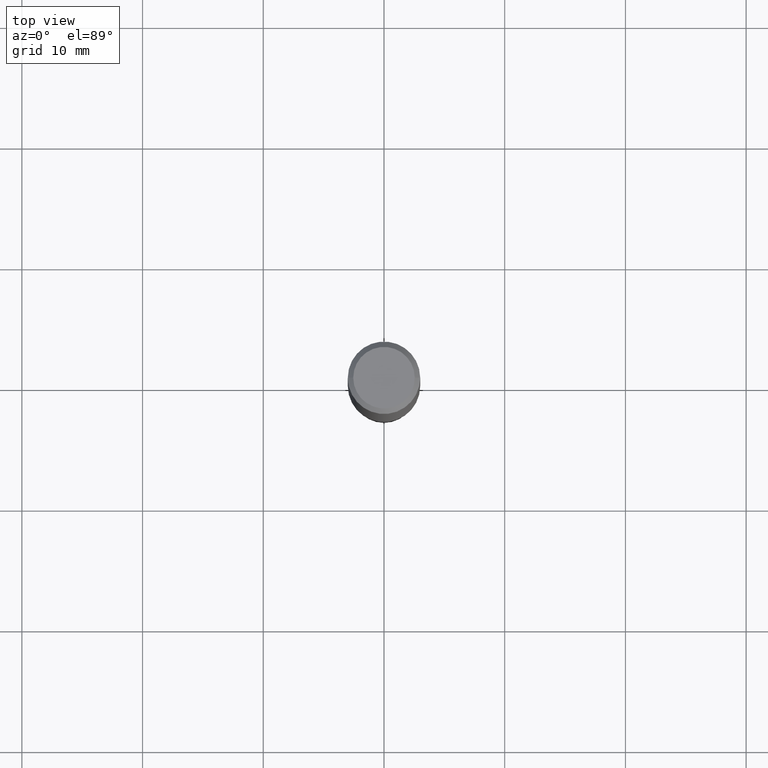
[diagram: clean part render]
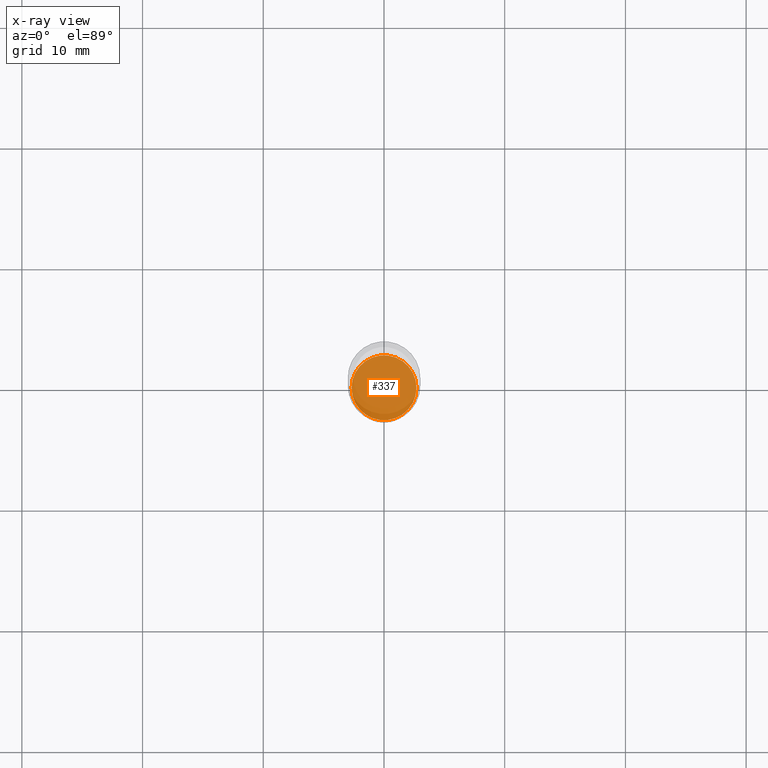
[diagram: x-ray — body ghosted, one internal face saturated and labeled with its STEP entity id]
A machine part, top view, then the same camera in x-ray: the body is ghosted and one INTERNAL B-rep face — a face not visible from any outside direction — is saturated and labeled: STEP entity #337.
In plain terms, the highlighted planar face has unit normal (-0, 0, 1).
Its self-contained STEP definition (entity closure, byte-faithful):
#6 = EDGE_CURVE ( 'NONE', #136, #96, #329, .T. ) ;
#20 = DIRECTION ( 'NONE',  ( -2.445468806185136597E-29, 3.491481338843145583E-15, 1.000000000000000000 ) ) ;
#64 = DIRECTION ( 'NONE',  ( 1.000000000000000000, -6.982962677686264344E-15, 0.000000000000000000 ) ) ;
#71 = CARTESIAN_POINT ( 'NONE',  ( 0.1058000000000000052, -7.390767698063169387E-15, -1.905200000000000227 ) ) ;
#96 = VERTEX_POINT ( 'NONE', #71 ) ;
#125 = CARTESIAN_POINT ( 'NONE',  ( -0.1058000000000000052, -5.897566805155665021E-15, -1.905200000000000227 ) ) ;
#136 = VERTEX_POINT ( 'NONE', #125 ) ;
#151 = ORIENTED_EDGE ( 'NONE', *, *, #400, .F. ) ;
#163 = FACE_OUTER_BOUND ( 'NONE', #320, .T. ) ;
#167 = CARTESIAN_POINT ( 'NONE',  ( 4.659107169543922763E-29, -6.651970246763962256E-15, -1.905200000000000227 ) ) ;
#169 = DIRECTION ( 'NONE',  ( 1.000000000000000000, -6.982962677686264344E-15, 0.000000000000000000 ) ) ;
#226 = DIRECTION ( 'NONE',  ( 1.000000000000000000, -6.982962677686265922E-15, 4.876176775795935793E-29 ) ) ;
#243 = ORIENTED_EDGE ( 'NONE', *, *, #6, .F. ) ;
#263 = AXIS2_PLACEMENT_3D ( 'NONE', #447, #419, #226 ) ;
#274 = AXIS2_PLACEMENT_3D ( 'NONE', #167, #452, #64 ) ;
#312 = PLANE ( 'NONE',  #263 ) ;
#319 = CIRCLE ( 'NONE', #274, 0.1058000000000000052 ) ;
#320 = EDGE_LOOP ( 'NONE', ( #151, #243 ) ) ;
#329 = CIRCLE ( 'NONE', #355, 0.1058000000000000052 ) ;
#337 = ADVANCED_FACE ( 'NONE', ( #163 ), #312, .F. ) ;
#355 = AXIS2_PLACEMENT_3D ( 'NONE', #359, #20, #169 ) ;
#359 = CARTESIAN_POINT ( 'NONE',  ( 4.659107169543922763E-29, -6.651970246763962256E-15, -1.905200000000000227 ) ) ;
#400 = EDGE_CURVE ( 'NONE', #96, #136, #319, .T. ) ;
#419 = DIRECTION ( 'NONE',  ( -2.438088387897960049E-29, 3.491481338843145188E-15, 1.000000000000000000 ) ) ;
#447 = CARTESIAN_POINT ( 'NONE',  ( 4.659107169543922763E-29, -6.651970246763962256E-15, -1.905200000000000227 ) ) ;
#452 = DIRECTION ( 'NONE',  ( -2.445468806185136597E-29, 3.491481338843145583E-15, 1.000000000000000000 ) ) ;